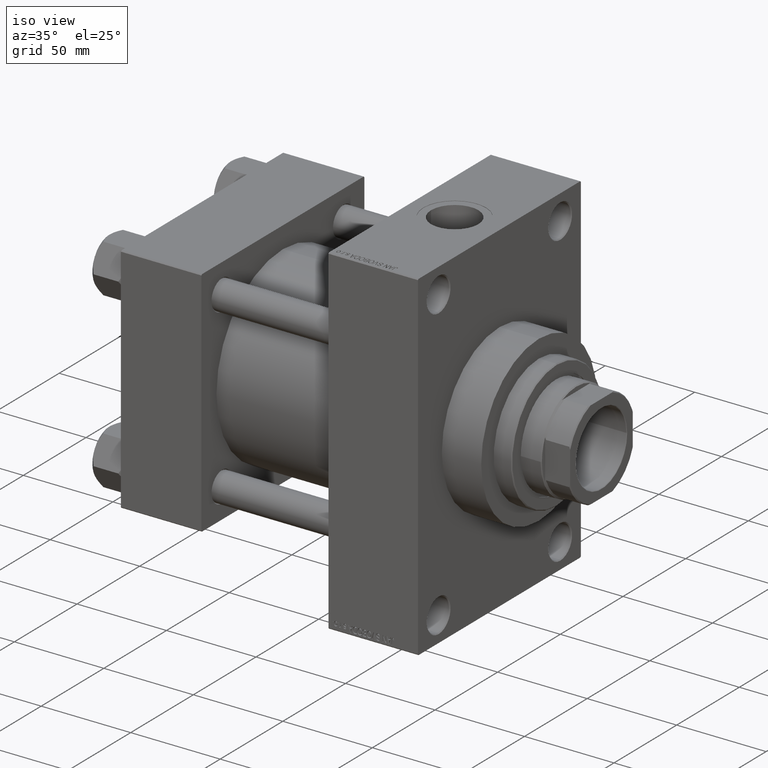
[diagram: clean part render]
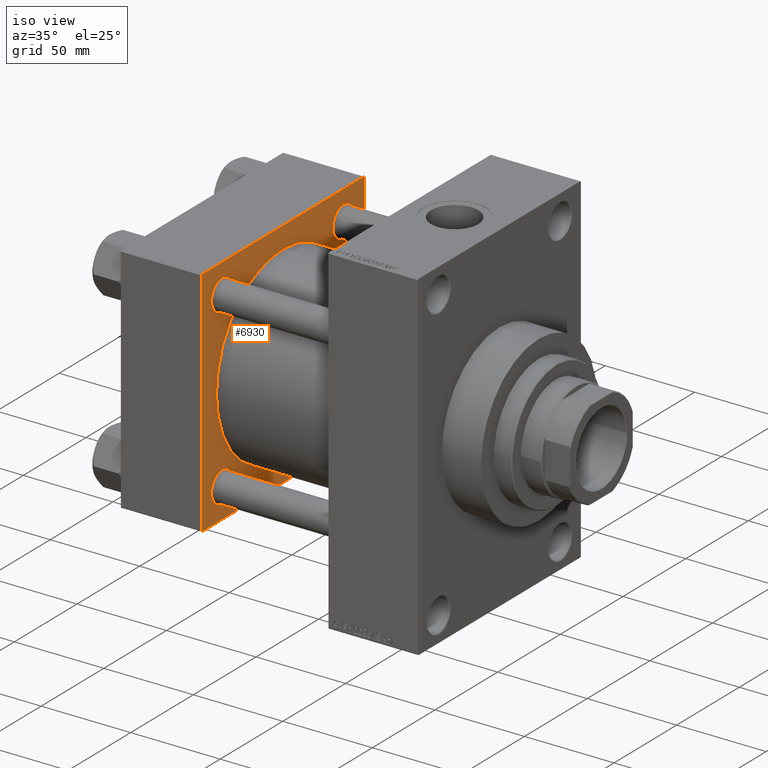
[diagram: same view with one face highlighted and labeled with its STEP entity id]
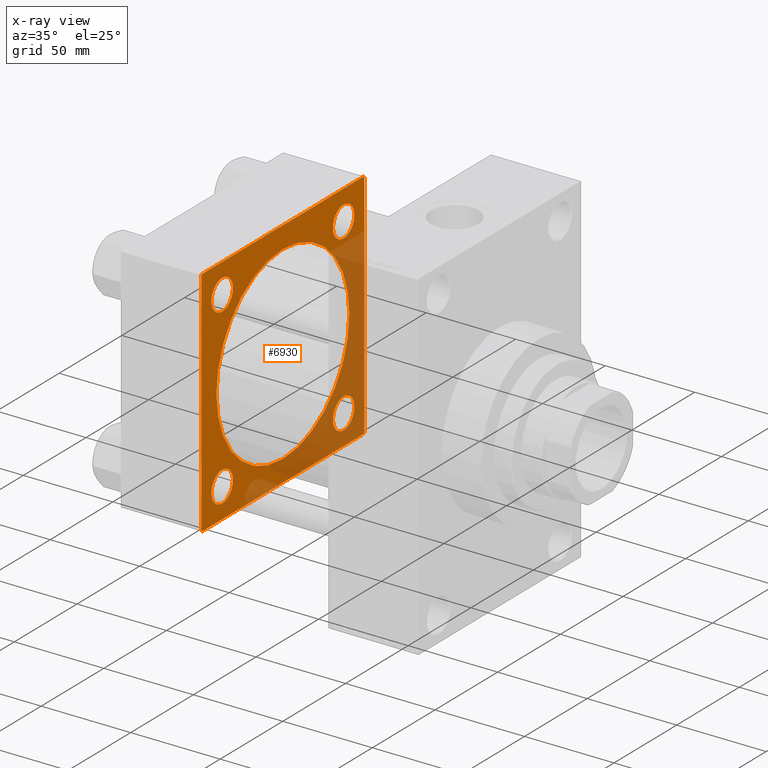
[diagram: x-ray of the same camera — body ghosted, the highlighted face saturated]
A machine part, iso view. The second image highlights one B-rep face of the part: STEP entity #6930.
The next image is the same camera in x-ray: the body ghosted, the highlighted face saturated — about 37% of this face is hidden behind the body in this view.
In plain terms, the highlighted planar face has unit normal (-1, 0, 0).
Its self-contained STEP definition (entity closure, byte-faithful):
#396 = VERTEX_POINT ( 'NONE', #46700 ) ;
#590 = DIRECTION ( 'NONE',  ( 0.000000000000000000, -0.7071067811865474617, 0.7071067811865474617 ) ) ;
#606 = DIRECTION ( 'NONE',  ( 0.000000000000000000, 0.000000000000000000, -1.000000000000000000 ) ) ;
#821 = DIRECTION ( 'NONE',  ( -1.000000000000000000, 0.000000000000000000, -0.000000000000000000 ) ) ;
#917 = CARTESIAN_POINT ( 'NONE',  ( 45.00000000000000000, -2.602085213965210642E-15, 0.000000000000000000 ) ) ;
#2588 = CARTESIAN_POINT ( 'NONE',  ( 45.00000000000000000, 48.45000000000000995, -48.45000000000001705 ) ) ;
#2620 = FACE_BOUND ( 'NONE', #16856, .T. ) ;
#2647 = CARTESIAN_POINT ( 'NONE',  ( 45.00000000000000000, -48.44999999999999574, -48.45000000000003126 ) ) ;
#2822 = VECTOR ( 'NONE', #46183, 1000.000000000000000 ) ;
#2897 = CARTESIAN_POINT ( 'NONE',  ( 45.00000000000000000, -48.44999999999999574, 48.45000000000003126 ) ) ;
#3152 = CARTESIAN_POINT ( 'NONE',  ( 45.00000000000000000, -48.44999999999999574, -56.95000000000003837 ) ) ;
#3344 = FACE_OUTER_BOUND ( 'NONE', #37139, .T. ) ;
#3903 = CIRCLE ( 'NONE', #16204, 53.00000000000000711 ) ;
#4534 = EDGE_CURVE ( 'NONE', #27850, #18261, #35431, .T. ) ;
#4716 = EDGE_CURVE ( 'NONE', #23237, #35564, #35467, .T. ) ;
#5059 = EDGE_CURVE ( 'NONE', #6558, #30942, #33647, .T. ) ;
#5804 = CARTESIAN_POINT ( 'NONE',  ( 45.00000000000000000, 3.888542821515762466E-15, -53.00000000000000711 ) ) ;
#6529 = EDGE_CURVE ( 'NONE', #28989, #31474, #21493, .T. ) ;
#6558 = VERTEX_POINT ( 'NONE', #43960 ) ;
#6916 = VECTOR ( 'NONE', #41736, 1000.000000000000000 ) ;
#6930 = ADVANCED_FACE ( 'NONE', ( #39532, #35669, #2620, #35907, #36392, #3344 ), #17327, .F. ) ;
#7000 = DIRECTION ( 'NONE',  ( 0.000000000000000000, 0.7071067811865279218, -0.7071067811865671127 ) ) ;
#7561 = ORIENTED_EDGE ( 'NONE', *, *, #23315, .T. ) ;
#7614 = VECTOR ( 'NONE', #17627, 1000.000000000000000 ) ;
#8242 = CARTESIAN_POINT ( 'NONE',  ( 45.00000000000000000, -48.44999999999999574, 39.95000000000001705 ) ) ;
#9368 = VERTEX_POINT ( 'NONE', #28842 ) ;
#9396 = DIRECTION ( 'NONE',  ( 0.000000000000000000, 0.000000000000000000, 1.000000000000000000 ) ) ;
#9403 = EDGE_CURVE ( 'NONE', #6558, #396, #45487, .T. ) ;
#9599 = CARTESIAN_POINT ( 'NONE',  ( 45.00000000000000000, -48.44999999999999574, 56.95000000000003837 ) ) ;
#9722 = LINE ( 'NONE', #43528, #2822 ) ;
#9786 = ORIENTED_EDGE ( 'NONE', *, *, #16025, .F. ) ;
#10088 = CARTESIAN_POINT ( 'NONE',  ( 45.00000000000000000, 0.000000000000000000, 0.000000000000000000 ) ) ;
#10136 = AXIS2_PLACEMENT_3D ( 'NONE', #33864, #821, #16467 ) ;
#10375 = EDGE_CURVE ( 'NONE', #18329, #37811, #41679, .T. ) ;
#10536 = CARTESIAN_POINT ( 'NONE',  ( 45.00000000000000000, 64.49999999999997158, -64.99999999999998579 ) ) ;
#10782 = AXIS2_PLACEMENT_3D ( 'NONE', #2588, #17296, #20435 ) ;
#11168 = CIRCLE ( 'NONE', #41986, 8.500000000000007105 ) ;
#11434 = VERTEX_POINT ( 'NONE', #9599 ) ;
#11537 = VECTOR ( 'NONE', #590, 1000.000000000000114 ) ;
#11910 = AXIS2_PLACEMENT_3D ( 'NONE', #40928, #33438, #40454 ) ;
#12527 = EDGE_CURVE ( 'NONE', #35017, #9368, #17073, .T. ) ;
#12541 = CIRCLE ( 'NONE', #39534, 8.500000000000007105 ) ;
#13109 = VECTOR ( 'NONE', #606, 1000.000000000000000 ) ;
#13263 = DIRECTION ( 'NONE',  ( 0.000000000000000000, -1.000000000000000000, -1.067522139062650425E-16 ) ) ;
#13415 = DIRECTION ( 'NONE',  ( -1.000000000000000000, 0.000000000000000000, -0.000000000000000000 ) ) ;
#13613 = VERTEX_POINT ( 'NONE', #10536 ) ;
#13798 = CARTESIAN_POINT ( 'NONE',  ( 45.00000000000000000, -2.602085213965210642E-15, 53.00000000000000711 ) ) ;
#14165 = AXIS2_PLACEMENT_3D ( 'NONE', #20398, #45765, #31020 ) ;
#14502 = CARTESIAN_POINT ( 'NONE',  ( 45.00000000000000000, -65.00000000000000000, 64.50000000000000000 ) ) ;
#14730 = DIRECTION ( 'NONE',  ( 1.000000000000000000, -0.000000000000000000, 0.000000000000000000 ) ) ;
#14830 = ORIENTED_EDGE ( 'NONE', *, *, #4716, .T. ) ;
#14883 = CARTESIAN_POINT ( 'NONE',  ( 45.00000000000000000, 48.45000000000000995, 39.95000000000000284 ) ) ;
#15572 = DIRECTION ( 'NONE',  ( 0.000000000000000000, 0.000000000000000000, 1.000000000000000000 ) ) ;
#15632 = DIRECTION ( 'NONE',  ( 1.000000000000000000, -0.000000000000000000, 0.000000000000000000 ) ) ;
#16004 = EDGE_CURVE ( 'NONE', #30691, #28932, #12541, .T. ) ;
#16025 = EDGE_CURVE ( 'NONE', #13613, #35564, #35207, .T. ) ;
#16204 = AXIS2_PLACEMENT_3D ( 'NONE', #917, #15632, #34194 ) ;
#16268 = CARTESIAN_POINT ( 'NONE',  ( 45.00000000000000000, -48.44999999999999574, 48.45000000000003126 ) ) ;
#16316 = CARTESIAN_POINT ( 'NONE',  ( 45.00000000000000000, 48.45000000000000995, 48.45000000000001705 ) ) ;
#16467 = DIRECTION ( 'NONE',  ( 0.000000000000000000, 0.000000000000000000, 1.000000000000000000 ) ) ;
#16856 = EDGE_LOOP ( 'NONE', ( #39158, #33362 ) ) ;
#17073 = CIRCLE ( 'NONE', #24795, 8.500000000000007105 ) ;
#17117 = DIRECTION ( 'NONE',  ( -0.000000000000000000, 0.7071067811865474617, 0.7071067811865474617 ) ) ;
#17122 = DIRECTION ( 'NONE',  ( -1.000000000000000000, 0.000000000000000000, -0.000000000000000000 ) ) ;
#17296 = DIRECTION ( 'NONE',  ( -1.000000000000000000, 0.000000000000000000, -0.000000000000000000 ) ) ;
#17327 = PLANE ( 'NONE',  #27667 ) ;
#17606 = DIRECTION ( 'NONE',  ( -1.000000000000000000, 0.000000000000000000, -0.000000000000000000 ) ) ;
#17627 = DIRECTION ( 'NONE',  ( -0.000000000000000000, -0.7071067811865672237, -0.7071067811865279218 ) ) ;
#17713 = EDGE_LOOP ( 'NONE', ( #36754, #39860 ) ) ;
#17859 = CARTESIAN_POINT ( 'NONE',  ( 45.00000000000000000, -2.602085213965210642E-15, 0.000000000000000000 ) ) ;
#18060 = DIRECTION ( 'NONE',  ( -0.000000000000000000, 0.000000000000000000, 1.000000000000000000 ) ) ;
#18098 = DIRECTION ( 'NONE',  ( 0.000000000000000000, 0.000000000000000000, 1.000000000000000000 ) ) ;
#18261 = VERTEX_POINT ( 'NONE', #21853 ) ;
#18329 = VERTEX_POINT ( 'NONE', #13798 ) ;
#19293 = LINE ( 'NONE', #27000, #6916 ) ;
#20073 = ORIENTED_EDGE ( 'NONE', *, *, #9403, .F. ) ;
#20075 = ORIENTED_EDGE ( 'NONE', *, *, #6529, .T. ) ;
#20398 = CARTESIAN_POINT ( 'NONE',  ( 45.00000000000000000, 48.45000000000000995, -48.45000000000001705 ) ) ;
#20435 = DIRECTION ( 'NONE',  ( 0.000000000000000000, 0.000000000000000000, 1.000000000000000000 ) ) ;
#21270 = EDGE_CURVE ( 'NONE', #18261, #27850, #33450, .T. ) ;
#21493 = LINE ( 'NONE', #14502, #7614 ) ;
#21638 = AXIS2_PLACEMENT_3D ( 'NONE', #17859, #14730, #18098 ) ;
#21667 = AXIS2_PLACEMENT_3D ( 'NONE', #2897, #17606, #32577 ) ;
#21853 = CARTESIAN_POINT ( 'NONE',  ( 45.00000000000000000, 48.45000000000000995, -39.95000000000000284 ) ) ;
#22226 = VECTOR ( 'NONE', #17117, 1000.000000000000114 ) ;
#23237 = VERTEX_POINT ( 'NONE', #27650 ) ;
#23315 = EDGE_CURVE ( 'NONE', #9368, #35017, #40452, .T. ) ;
#23399 = ORIENTED_EDGE ( 'NONE', *, *, #4534, .T. ) ;
#23416 = EDGE_CURVE ( 'NONE', #37735, #11434, #11168, .T. ) ;
#24035 = DIRECTION ( 'NONE',  ( 0.000000000000000000, 0.000000000000000000, 1.000000000000000000 ) ) ;
#24795 = AXIS2_PLACEMENT_3D ( 'NONE', #16316, #13415, #24035 ) ;
#25011 = EDGE_LOOP ( 'NONE', ( #26041, #40114 ) ) ;
#25304 = EDGE_LOOP ( 'NONE', ( #41089, #7561 ) ) ;
#26041 = ORIENTED_EDGE ( 'NONE', *, *, #16004, .T. ) ;
#26865 = CARTESIAN_POINT ( 'NONE',  ( 45.00000000000000000, 64.49999999999997158, 65.00000000000001421 ) ) ;
#26868 = CARTESIAN_POINT ( 'NONE',  ( 45.00000000000000000, 64.49999999999997158, 65.00000000000001421 ) ) ;
#27000 = CARTESIAN_POINT ( 'NONE',  ( 45.00000000000000000, -65.00000000000000000, 65.00000000000000000 ) ) ;
#27650 = CARTESIAN_POINT ( 'NONE',  ( 45.00000000000000000, -65.00000000000000000, -64.49999999999991473 ) ) ;
#27667 = AXIS2_PLACEMENT_3D ( 'NONE', #10088, #32056, #18060 ) ;
#27720 = CARTESIAN_POINT ( 'NONE',  ( 45.00000000000000000, -48.44999999999999574, -39.95000000000001705 ) ) ;
#27850 = VERTEX_POINT ( 'NONE', #39842 ) ;
#28842 = CARTESIAN_POINT ( 'NONE',  ( 45.00000000000000000, 48.45000000000000995, 56.95000000000002416 ) ) ;
#28932 = VERTEX_POINT ( 'NONE', #27720 ) ;
#28989 = VERTEX_POINT ( 'NONE', #34956 ) ;
#30516 = DIRECTION ( 'NONE',  ( -1.000000000000000000, 0.000000000000000000, -0.000000000000000000 ) ) ;
#30691 = VERTEX_POINT ( 'NONE', #3152 ) ;
#30942 = VERTEX_POINT ( 'NONE', #26868 ) ;
#31020 = DIRECTION ( 'NONE',  ( 0.000000000000000000, 0.000000000000000000, 1.000000000000000000 ) ) ;
#31093 = EDGE_CURVE ( 'NONE', #30942, #28989, #9722, .T. ) ;
#31474 = VERTEX_POINT ( 'NONE', #43222 ) ;
#32056 = DIRECTION ( 'NONE',  ( -1.000000000000000000, 0.000000000000000000, -0.000000000000000000 ) ) ;
#32354 = VECTOR ( 'NONE', #7000, 1000.000000000000000 ) ;
#32577 = DIRECTION ( 'NONE',  ( 0.000000000000000000, 0.000000000000000000, 1.000000000000000000 ) ) ;
#33362 = ORIENTED_EDGE ( 'NONE', *, *, #45641, .T. ) ;
#33438 = DIRECTION ( 'NONE',  ( -1.000000000000000000, 0.000000000000000000, -0.000000000000000000 ) ) ;
#33450 = CIRCLE ( 'NONE', #14165, 8.500000000000007105 ) ;
#33647 = LINE ( 'NONE', #26865, #11537 ) ;
#33864 = CARTESIAN_POINT ( 'NONE',  ( 45.00000000000000000, -48.44999999999999574, -48.45000000000003126 ) ) ;
#34147 = VECTOR ( 'NONE', #13263, 1000.000000000000000 ) ;
#34194 = DIRECTION ( 'NONE',  ( 0.000000000000000000, 0.000000000000000000, 1.000000000000000000 ) ) ;
#34956 = CARTESIAN_POINT ( 'NONE',  ( 45.00000000000000000, -64.49999999999997158, 65.00000000000000000 ) ) ;
#35017 = VERTEX_POINT ( 'NONE', #14883 ) ;
#35207 = LINE ( 'NONE', #46338, #34147 ) ;
#35431 = CIRCLE ( 'NONE', #10782, 8.500000000000007105 ) ;
#35450 = CARTESIAN_POINT ( 'NONE',  ( 45.00000000000000000, 65.00000000000000000, -64.49999999999995737 ) ) ;
#35467 = LINE ( 'NONE', #39809, #32354 ) ;
#35564 = VERTEX_POINT ( 'NONE', #39072 ) ;
#35571 = EDGE_CURVE ( 'NONE', #13613, #396, #47298, .T. ) ;
#35669 = FACE_BOUND ( 'NONE', #35921, .T. ) ;
#35907 = FACE_BOUND ( 'NONE', #25304, .T. ) ;
#35921 = EDGE_LOOP ( 'NONE', ( #23399, #45939 ) ) ;
#36392 = FACE_BOUND ( 'NONE', #17713, .T. ) ;
#36754 = ORIENTED_EDGE ( 'NONE', *, *, #10375, .F. ) ;
#37139 = EDGE_LOOP ( 'NONE', ( #9786, #45449, #20073, #37187, #42762, #20075, #44746, #14830 ) ) ;
#37187 = ORIENTED_EDGE ( 'NONE', *, *, #5059, .T. ) ;
#37735 = VERTEX_POINT ( 'NONE', #8242 ) ;
#37811 = VERTEX_POINT ( 'NONE', #5804 ) ;
#38583 = CIRCLE ( 'NONE', #21667, 8.500000000000007105 ) ;
#38933 = EDGE_CURVE ( 'NONE', #31474, #23237, #19293, .T. ) ;
#39072 = CARTESIAN_POINT ( 'NONE',  ( 45.00000000000000000, -64.49999999999994316, -65.00000000000000000 ) ) ;
#39158 = ORIENTED_EDGE ( 'NONE', *, *, #23416, .T. ) ;
#39423 = CIRCLE ( 'NONE', #10136, 8.500000000000007105 ) ;
#39532 = FACE_BOUND ( 'NONE', #25011, .T. ) ;
#39534 = AXIS2_PLACEMENT_3D ( 'NONE', #2647, #17122, #9396 ) ;
#39809 = CARTESIAN_POINT ( 'NONE',  ( 45.00000000000000000, -64.49999999999994316, -65.00000000000000000 ) ) ;
#39842 = CARTESIAN_POINT ( 'NONE',  ( 45.00000000000000000, 48.45000000000000995, -56.95000000000002416 ) ) ;
#39860 = ORIENTED_EDGE ( 'NONE', *, *, #41489, .F. ) ;
#40114 = ORIENTED_EDGE ( 'NONE', *, *, #47038, .T. ) ;
#40452 = CIRCLE ( 'NONE', #11910, 8.500000000000007105 ) ;
#40454 = DIRECTION ( 'NONE',  ( 0.000000000000000000, 0.000000000000000000, 1.000000000000000000 ) ) ;
#40928 = CARTESIAN_POINT ( 'NONE',  ( 45.00000000000000000, 48.45000000000000995, 48.45000000000001705 ) ) ;
#41089 = ORIENTED_EDGE ( 'NONE', *, *, #12527, .T. ) ;
#41489 = EDGE_CURVE ( 'NONE', #37811, #18329, #3903, .T. ) ;
#41679 = CIRCLE ( 'NONE', #21638, 53.00000000000000711 ) ;
#41736 = DIRECTION ( 'NONE',  ( 0.000000000000000000, 0.000000000000000000, -1.000000000000000000 ) ) ;
#41986 = AXIS2_PLACEMENT_3D ( 'NONE', #16268, #30516, #15572 ) ;
#42762 = ORIENTED_EDGE ( 'NONE', *, *, #31093, .T. ) ;
#43222 = CARTESIAN_POINT ( 'NONE',  ( 45.00000000000000000, -65.00000000000000000, 64.50000000000000000 ) ) ;
#43528 = CARTESIAN_POINT ( 'NONE',  ( 45.00000000000000000, 65.00000000000000000, 65.00000000000001421 ) ) ;
#43960 = CARTESIAN_POINT ( 'NONE',  ( 45.00000000000000000, 65.00000000000000000, 64.49999999999998579 ) ) ;
#44746 = ORIENTED_EDGE ( 'NONE', *, *, #38933, .T. ) ;
#45251 = CARTESIAN_POINT ( 'NONE',  ( 45.00000000000000000, 65.00000000000000000, 65.00000000000001421 ) ) ;
#45449 = ORIENTED_EDGE ( 'NONE', *, *, #35571, .T. ) ;
#45487 = LINE ( 'NONE', #45251, #13109 ) ;
#45641 = EDGE_CURVE ( 'NONE', #11434, #37735, #38583, .T. ) ;
#45765 = DIRECTION ( 'NONE',  ( -1.000000000000000000, 0.000000000000000000, -0.000000000000000000 ) ) ;
#45939 = ORIENTED_EDGE ( 'NONE', *, *, #21270, .T. ) ;
#46183 = DIRECTION ( 'NONE',  ( 0.000000000000000000, -1.000000000000000000, -1.067522139062650425E-16 ) ) ;
#46338 = CARTESIAN_POINT ( 'NONE',  ( 45.00000000000000000, 65.00000000000000000, -64.99999999999998579 ) ) ;
#46700 = CARTESIAN_POINT ( 'NONE',  ( 45.00000000000000000, 65.00000000000000000, -64.49999999999995737 ) ) ;
#47038 = EDGE_CURVE ( 'NONE', #28932, #30691, #39423, .T. ) ;
#47298 = LINE ( 'NONE', #35450, #22226 ) ;